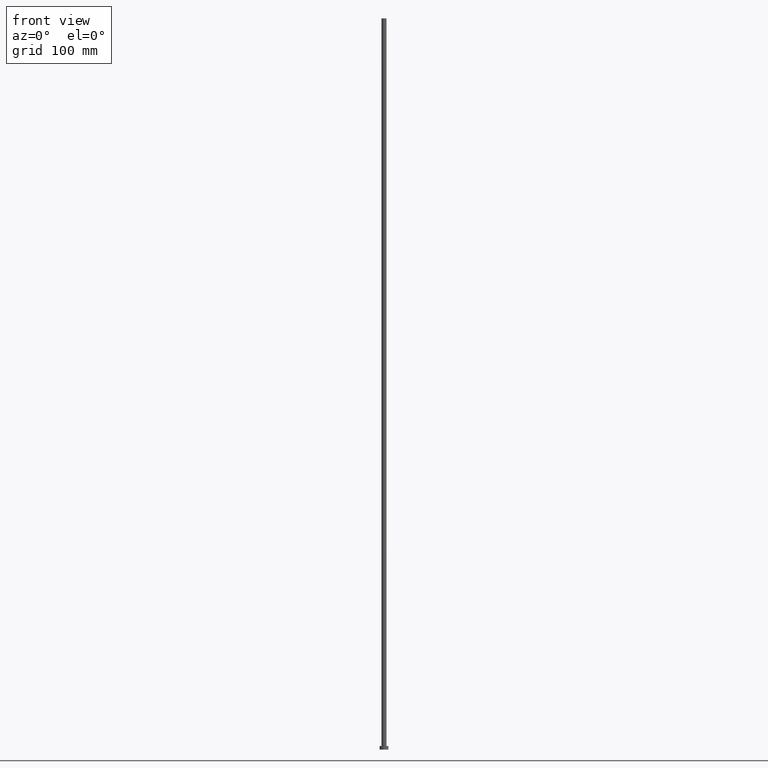
[diagram: clean part render]
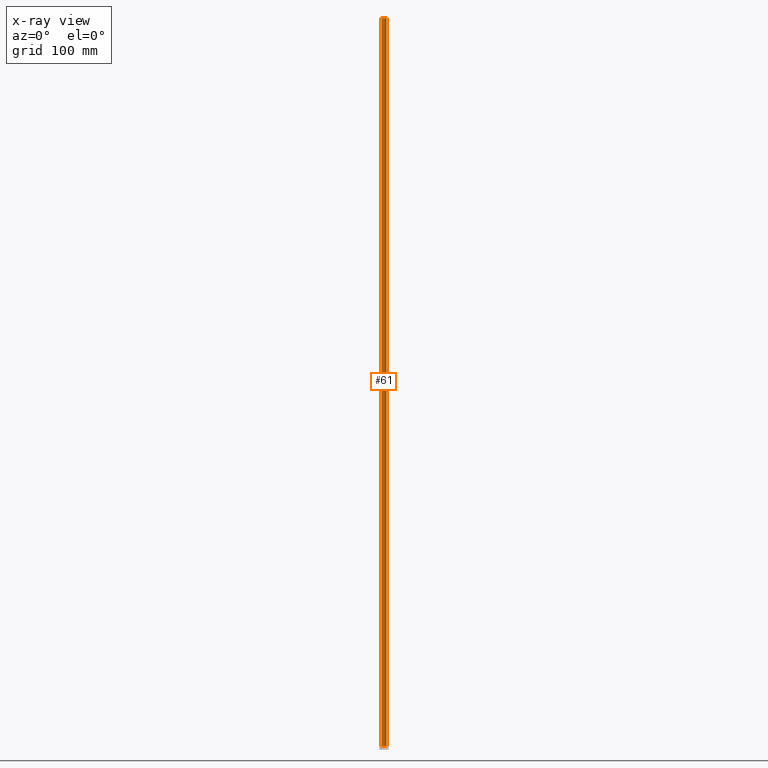
[diagram: x-ray — body ghosted, one internal face saturated and labeled with its STEP entity id]
A machine part, front view, then the same camera in x-ray: the body is ghosted and one INTERNAL B-rep face — a face not visible from any outside direction — is saturated and labeled: STEP entity #61.
In plain terms, the highlighted cylindrical surface (edge-blend (fillet) strip) has radius 3.5 mm, axis along (-0, -0, -1).
Its self-contained STEP definition (entity closure, byte-faithful):
#1 = AXIS2_PLACEMENT_3D ( 'NONE', #232, #108, #174 ) ;
#14 = CYLINDRICAL_SURFACE ( 'NONE', #152, 3.500000000000000000 ) ;
#28 = VERTEX_POINT ( 'NONE', #50 ) ;
#30 = CARTESIAN_POINT ( 'NONE',  ( -3.500000000000000000, 0.000000000000000000, 5.000000000000000000 ) ) ;
#33 = DIRECTION ( 'NONE',  ( -0.000000000000000000, -0.000000000000000000, -1.000000000000000000 ) ) ;
#40 = VERTEX_POINT ( 'NONE', #175 ) ;
#50 = CARTESIAN_POINT ( 'NONE',  ( 3.500000000000000000, 4.286263797015735609E-16, 5.000000000000000000 ) ) ;
#55 = CARTESIAN_POINT ( 'NONE',  ( 3.500000000000000000, 4.286263797015735609E-16, 1000.000000000000000 ) ) ;
#60 = ORIENTED_EDGE ( 'NONE', *, *, #219, .T. ) ;
#61 = ADVANCED_FACE ( 'NONE', ( #225 ), #14, .T. ) ;
#64 = CARTESIAN_POINT ( 'NONE',  ( 0.000000000000000000, 0.000000000000000000, 5.000000000000000000 ) ) ;
#72 = ORIENTED_EDGE ( 'NONE', *, *, #193, .F. ) ;
#86 = DIRECTION ( 'NONE',  ( 0.000000000000000000, 0.000000000000000000, 1.000000000000000000 ) ) ;
#87 = CARTESIAN_POINT ( 'NONE',  ( -3.500000000000000000, 0.000000000000000000, 1000.000000000000000 ) ) ;
#89 = CIRCLE ( 'NONE', #1, 3.500000000000000000 ) ;
#93 = LINE ( 'NONE', #55, #207 ) ;
#108 = DIRECTION ( 'NONE',  ( 0.000000000000000000, 0.000000000000000000, 1.000000000000000000 ) ) ;
#117 = EDGE_LOOP ( 'NONE', ( #199, #170, #60, #72 ) ) ;
#132 = DIRECTION ( 'NONE',  ( -0.000000000000000000, -0.000000000000000000, -1.000000000000000000 ) ) ;
#144 = CARTESIAN_POINT ( 'NONE',  ( 0.000000000000000000, 0.000000000000000000, 1000.000000000000000 ) ) ;
#148 = VECTOR ( 'NONE', #33, 1000.000000000000000 ) ;
#149 = DIRECTION ( 'NONE',  ( 1.000000000000000000, 0.000000000000000000, 0.000000000000000000 ) ) ;
#152 = AXIS2_PLACEMENT_3D ( 'NONE', #144, #205, #221 ) ;
#170 = ORIENTED_EDGE ( 'NONE', *, *, #248, .T. ) ;
#172 = CIRCLE ( 'NONE', #246, 3.500000000000000000 ) ;
#174 = DIRECTION ( 'NONE',  ( 1.000000000000000000, 0.000000000000000000, 0.000000000000000000 ) ) ;
#175 = CARTESIAN_POINT ( 'NONE',  ( 3.500000000000000000, 4.286263797015735609E-16, 1000.000000000000000 ) ) ;
#193 = EDGE_CURVE ( 'NONE', #241, #202, #203, .T. ) ;
#199 = ORIENTED_EDGE ( 'NONE', *, *, #229, .F. ) ;
#202 = VERTEX_POINT ( 'NONE', #30 ) ;
#203 = LINE ( 'NONE', #87, #148 ) ;
#205 = DIRECTION ( 'NONE',  ( -0.000000000000000000, -0.000000000000000000, -1.000000000000000000 ) ) ;
#207 = VECTOR ( 'NONE', #132, 1000.000000000000000 ) ;
#219 = EDGE_CURVE ( 'NONE', #28, #202, #172, .T. ) ;
#221 = DIRECTION ( 'NONE',  ( -1.000000000000000000, 0.000000000000000000, 0.000000000000000000 ) ) ;
#225 = FACE_OUTER_BOUND ( 'NONE', #117, .T. ) ;
#229 = EDGE_CURVE ( 'NONE', #40, #241, #89, .T. ) ;
#232 = CARTESIAN_POINT ( 'NONE',  ( 0.000000000000000000, 0.000000000000000000, 1000.000000000000000 ) ) ;
#236 = CARTESIAN_POINT ( 'NONE',  ( -3.500000000000000000, 0.000000000000000000, 1000.000000000000000 ) ) ;
#241 = VERTEX_POINT ( 'NONE', #236 ) ;
#246 = AXIS2_PLACEMENT_3D ( 'NONE', #64, #86, #149 ) ;
#248 = EDGE_CURVE ( 'NONE', #40, #28, #93, .T. ) ;